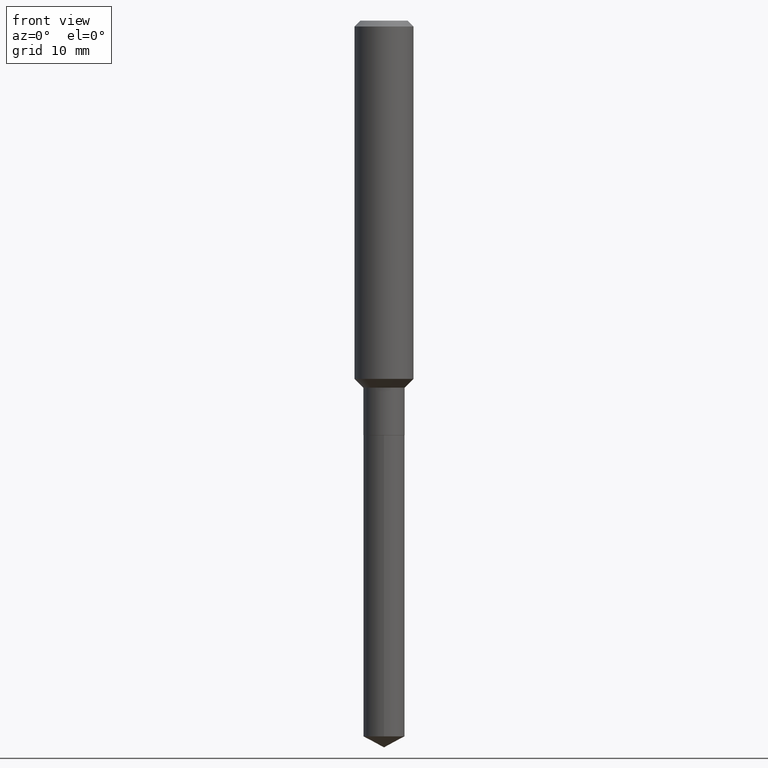
[diagram: clean part render]
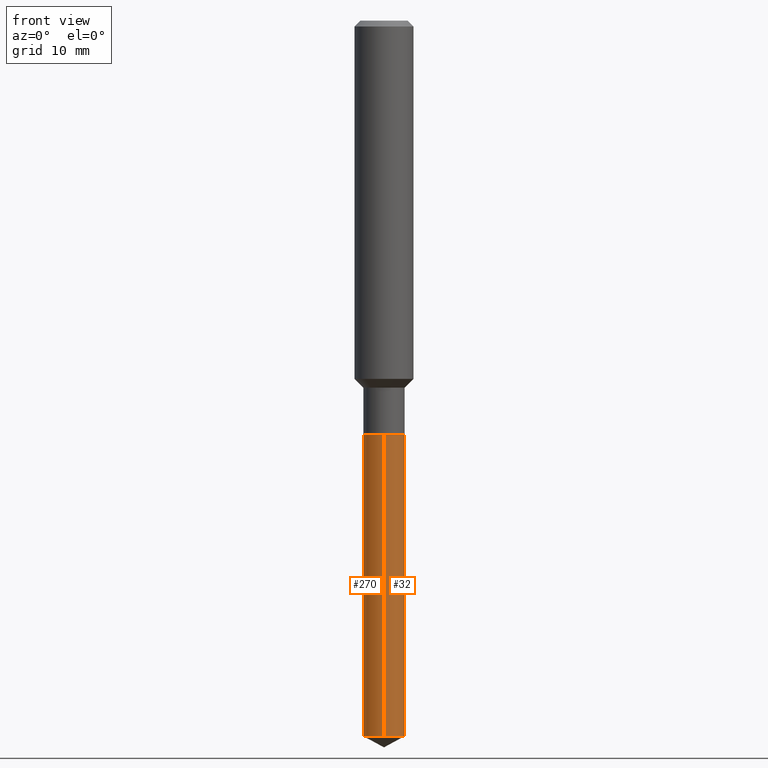
[diagram: same view with one multi-face feature highlighted, each face labeled with its STEP entity id]
A machine part, front view. The highlighted faces form ONE feature: a constant-radius fillet chain: 2 tangent blend faces with common blend radius 2.1006 mm. The faces share edges in the B-rep.
Their STEP definitions:
[1] entity #270 (Cylinder):
#2 = CARTESIAN_POINT ( 'NONE',  ( -5.774910134445841753E-16, -0.08270000000001001550, -2.869427630001595286 ) ) ;
#20 = VERTEX_POINT ( 'NONE', #2 ) ;
#28 = LINE ( 'NONE', #342, #485 ) ;
#37 = LINE ( 'NONE', #146, #188 ) ;
#52 = EDGE_LOOP ( 'NONE', ( #399, #208, #444, #105 ) ) ;
#62 = CARTESIAN_POINT ( 'NONE',  ( 4.063146421476604662E-29, -5.801096244487885918E-15, -1.661499999999999977 ) ) ;
#65 = EDGE_CURVE ( 'NONE', #177, #20, #317, .T. ) ;
#70 = CARTESIAN_POINT ( 'NONE',  ( 7.017160943428417536E-29, -1.001845967804132223E-14, -2.869427630001595730 ) ) ;
#103 = EDGE_CURVE ( 'NONE', #20, #442, #37, .T. ) ;
#105 = ORIENTED_EDGE ( 'NONE', *, *, #153, .F. ) ;
#107 = DIRECTION ( 'NONE',  ( -2.445522768568436429E-29, 3.491404061638911732E-15, 1.000000000000000000 ) ) ;
#113 = CIRCLE ( 'NONE', #264, 0.08269999999999999574 ) ;
#119 = CARTESIAN_POINT ( 'NONE',  ( 5.876188424736729334E-16, 0.08269999999998998985, -2.869427630001596174 ) ) ;
#140 = EDGE_CURVE ( 'NONE', #177, #204, #28, .T. ) ;
#141 = CYLINDRICAL_SURFACE ( 'NONE', #327, 0.08269999999999999574 ) ;
#146 = CARTESIAN_POINT ( 'NONE',  ( -5.774910134446135604E-16, -0.08270000000000579665, -1.661499999999999755 ) ) ;
#153 = EDGE_CURVE ( 'NONE', #204, #442, #113, .T. ) ;
#156 = DIRECTION ( 'NONE',  ( -2.445522768568436429E-29, 3.491404061638911732E-15, 1.000000000000000000 ) ) ;
#177 = VERTEX_POINT ( 'NONE', #119 ) ;
#188 = VECTOR ( 'NONE', #107, 39.37007874015748143 ) ;
#203 = FACE_OUTER_BOUND ( 'NONE', #52, .T. ) ;
#204 = VERTEX_POINT ( 'NONE', #395 ) ;
#208 = ORIENTED_EDGE ( 'NONE', *, *, #65, .T. ) ;
#231 = CARTESIAN_POINT ( 'NONE',  ( -5.774910134446135604E-16, -0.08270000000000579665, -1.661499999999999755 ) ) ;
#232 = DIRECTION ( 'NONE',  ( -2.445522768568436709E-29, 3.491404061638911732E-15, 1.000000000000000000 ) ) ;
#249 = DIRECTION ( 'NONE',  ( -6.982962677686265922E-15, -1.000000000000000000, 6.606645692053841341E-15 ) ) ;
#252 = DIRECTION ( 'NONE',  ( -2.445522768568436709E-29, 3.491404061638911732E-15, 1.000000000000000000 ) ) ;
#264 = AXIS2_PLACEMENT_3D ( 'NONE', #419, #252, #267 ) ;
#267 = DIRECTION ( 'NONE',  ( -6.982962677686265922E-15, -1.000000000000000000, 3.303322846026920670E-15 ) ) ;
#270 = ADVANCED_FACE ( 'NONE', ( #203 ), #141, .T. ) ;
#317 = CIRCLE ( 'NONE', #326, 0.08269999999999999574 ) ;
#326 = AXIS2_PLACEMENT_3D ( 'NONE', #70, #232, #249 ) ;
#327 = AXIS2_PLACEMENT_3D ( 'NONE', #62, #473, #355 ) ;
#342 = CARTESIAN_POINT ( 'NONE',  ( 5.876188424736433512E-16, 0.08269999999999419482, -1.661500000000000199 ) ) ;
#355 = DIRECTION ( 'NONE',  ( -6.982962677686265922E-15, -1.000000000000000000, 3.303322846026920670E-15 ) ) ;
#395 = CARTESIAN_POINT ( 'NONE',  ( 5.876188424736729334E-16, 0.08269999999999419482, -1.661500000000000199 ) ) ;
#399 = ORIENTED_EDGE ( 'NONE', *, *, #140, .F. ) ;
#419 = CARTESIAN_POINT ( 'NONE',  ( 4.063146421476604662E-29, -5.801096244487885918E-15, -1.661499999999999977 ) ) ;
#442 = VERTEX_POINT ( 'NONE', #231 ) ;
#444 = ORIENTED_EDGE ( 'NONE', *, *, #103, .T. ) ;
#473 = DIRECTION ( 'NONE',  ( -2.445522768568436709E-29, 3.491404061638911732E-15, 1.000000000000000000 ) ) ;
#485 = VECTOR ( 'NONE', #156, 39.37007874015748143 ) ;
[2] entity #32 (Cylinder):
#2 = CARTESIAN_POINT ( 'NONE',  ( -5.774910134445841753E-16, -0.08270000000001001550, -2.869427630001595286 ) ) ;
#16 = ORIENTED_EDGE ( 'NONE', *, *, #432, .F. ) ;
#20 = VERTEX_POINT ( 'NONE', #2 ) ;
#28 = LINE ( 'NONE', #342, #485 ) ;
#29 = AXIS2_PLACEMENT_3D ( 'NONE', #379, #217, #144 ) ;
#32 = ADVANCED_FACE ( 'NONE', ( #423 ), #219, .T. ) ;
#35 = AXIS2_PLACEMENT_3D ( 'NONE', #42, #191, #411 ) ;
#37 = LINE ( 'NONE', #146, #188 ) ;
#42 = CARTESIAN_POINT ( 'NONE',  ( 7.017160943428417536E-29, -1.001845967804132223E-14, -2.869427630001595730 ) ) ;
#50 = ORIENTED_EDGE ( 'NONE', *, *, #103, .F. ) ;
#63 = ORIENTED_EDGE ( 'NONE', *, *, #140, .T. ) ;
#74 = DIRECTION ( 'NONE',  ( -6.982962677686265922E-15, -1.000000000000000000, 3.303322846026920670E-15 ) ) ;
#94 = ORIENTED_EDGE ( 'NONE', *, *, #483, .T. ) ;
#103 = EDGE_CURVE ( 'NONE', #20, #442, #37, .T. ) ;
#107 = DIRECTION ( 'NONE',  ( -2.445522768568436429E-29, 3.491404061638911732E-15, 1.000000000000000000 ) ) ;
#112 = DIRECTION ( 'NONE',  ( -2.445522768568436709E-29, 3.491404061638911732E-15, 1.000000000000000000 ) ) ;
#119 = CARTESIAN_POINT ( 'NONE',  ( 5.876188424736729334E-16, 0.08269999999998998985, -2.869427630001596174 ) ) ;
#140 = EDGE_CURVE ( 'NONE', #177, #204, #28, .T. ) ;
#144 = DIRECTION ( 'NONE',  ( -6.982962677686265922E-15, -1.000000000000000000, 3.303322846026920670E-15 ) ) ;
#146 = CARTESIAN_POINT ( 'NONE',  ( -5.774910134446135604E-16, -0.08270000000000579665, -1.661499999999999755 ) ) ;
#156 = DIRECTION ( 'NONE',  ( -2.445522768568436429E-29, 3.491404061638911732E-15, 1.000000000000000000 ) ) ;
#177 = VERTEX_POINT ( 'NONE', #119 ) ;
#188 = VECTOR ( 'NONE', #107, 39.37007874015748143 ) ;
#191 = DIRECTION ( 'NONE',  ( -2.445522768568436709E-29, 3.491404061638911732E-15, 1.000000000000000000 ) ) ;
#204 = VERTEX_POINT ( 'NONE', #395 ) ;
#207 = AXIS2_PLACEMENT_3D ( 'NONE', #414, #112, #74 ) ;
#217 = DIRECTION ( 'NONE',  ( -2.445522768568436709E-29, 3.491404061638911732E-15, 1.000000000000000000 ) ) ;
#219 = CYLINDRICAL_SURFACE ( 'NONE', #29, 0.08269999999999999574 ) ;
#231 = CARTESIAN_POINT ( 'NONE',  ( -5.774910134446135604E-16, -0.08270000000000579665, -1.661499999999999755 ) ) ;
#342 = CARTESIAN_POINT ( 'NONE',  ( 5.876188424736433512E-16, 0.08269999999999419482, -1.661500000000000199 ) ) ;
#375 = CIRCLE ( 'NONE', #207, 0.08269999999999999574 ) ;
#379 = CARTESIAN_POINT ( 'NONE',  ( 4.063146421476604662E-29, -5.801096244487885918E-15, -1.661499999999999977 ) ) ;
#384 = EDGE_LOOP ( 'NONE', ( #94, #63, #16, #50 ) ) ;
#395 = CARTESIAN_POINT ( 'NONE',  ( 5.876188424736729334E-16, 0.08269999999999419482, -1.661500000000000199 ) ) ;
#400 = CIRCLE ( 'NONE', #35, 0.08269999999999999574 ) ;
#411 = DIRECTION ( 'NONE',  ( -6.982962677686265922E-15, -1.000000000000000000, 6.606645692053841341E-15 ) ) ;
#414 = CARTESIAN_POINT ( 'NONE',  ( 4.063146421476604662E-29, -5.801096244487885918E-15, -1.661499999999999977 ) ) ;
#423 = FACE_OUTER_BOUND ( 'NONE', #384, .T. ) ;
#432 = EDGE_CURVE ( 'NONE', #442, #204, #375, .T. ) ;
#442 = VERTEX_POINT ( 'NONE', #231 ) ;
#483 = EDGE_CURVE ( 'NONE', #20, #177, #400, .T. ) ;
#485 = VECTOR ( 'NONE', #156, 39.37007874015748143 ) ;